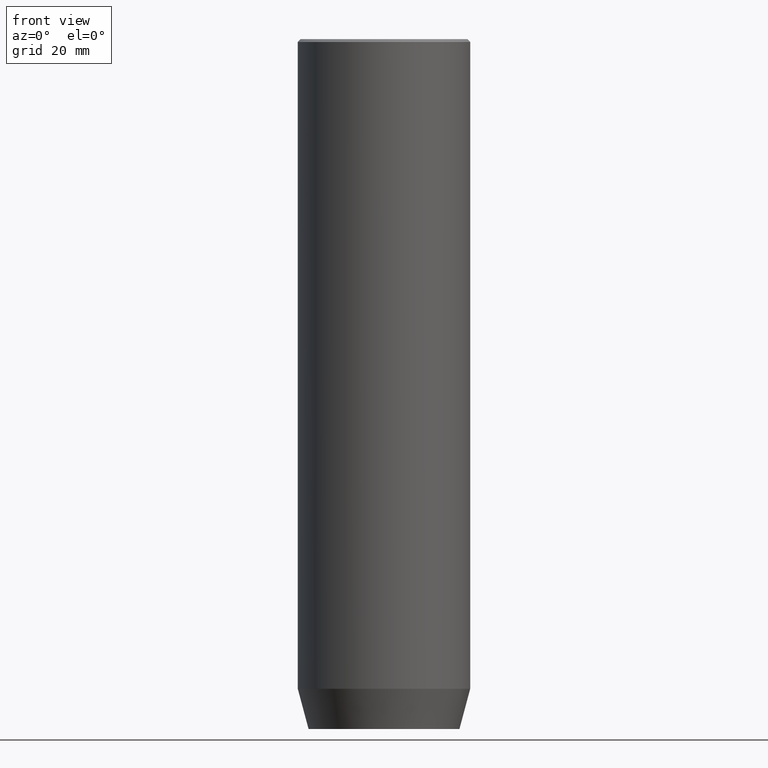
[diagram: clean part render]
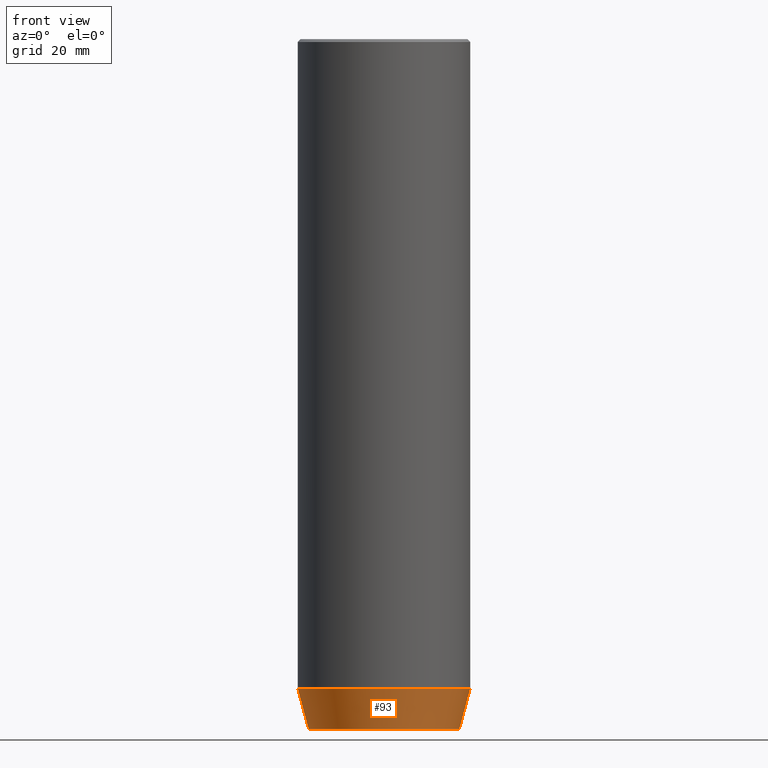
[diagram: same view with one face highlighted and labeled with its STEP entity id]
A machine part, front view. The second image highlights one B-rep face of the part: STEP entity #93.
In plain terms, the highlighted conical surface has half-angle 15 deg.
Its self-contained STEP definition (entity closure, byte-faithful):
#2 = DIRECTION ( 'NONE',  ( 1.000000000000000000, 0.000000000000000000, 0.000000000000000000 ) ) ;
#21 = CARTESIAN_POINT ( 'NONE',  ( 0.000000000000000000, 0.000000000000000000, -112.9999999999999858 ) ) ;
#24 = CIRCLE ( 'NONE', #263, 13.12435565298213369 ) ;
#34 = DIRECTION ( 'NONE',  ( 0.2588190451025213501, 0.000000000000000000, 0.9659258262890680902 ) ) ;
#39 = CARTESIAN_POINT ( 'NONE',  ( -15.00000000000000000, 1.836970198721029589E-15, -112.9999999999999858 ) ) ;
#41 = VERTEX_POINT ( 'NONE', #517 ) ;
#93 = ADVANCED_FACE ( 'NONE', ( #323 ), #488, .T. ) ;
#114 = CIRCLE ( 'NONE', #284, 15.00000000000000000 ) ;
#160 = VERTEX_POINT ( 'NONE', #39 ) ;
#169 = VECTOR ( 'NONE', #407, 1000.000000000000000 ) ;
#180 = DIRECTION ( 'NONE',  ( 1.000000000000000000, 0.000000000000000000, 0.000000000000000000 ) ) ;
#187 = LINE ( 'NONE', #430, #398 ) ;
#188 = DIRECTION ( 'NONE',  ( -0.000000000000000000, -0.000000000000000000, 1.000000000000000000 ) ) ;
#203 = LINE ( 'NONE', #459, #169 ) ;
#204 = CARTESIAN_POINT ( 'NONE',  ( 0.000000000000000000, 0.000000000000000000, -120.0000000000000000 ) ) ;
#206 = AXIS2_PLACEMENT_3D ( 'NONE', #623, #188, #180 ) ;
#262 = VERTEX_POINT ( 'NONE', #602 ) ;
#263 = AXIS2_PLACEMENT_3D ( 'NONE', #204, #349, #2 ) ;
#274 = DIRECTION ( 'NONE',  ( -0.000000000000000000, -0.000000000000000000, 1.000000000000000000 ) ) ;
#284 = AXIS2_PLACEMENT_3D ( 'NONE', #21, #274, #318 ) ;
#318 = DIRECTION ( 'NONE',  ( 1.000000000000000000, 0.000000000000000000, 0.000000000000000000 ) ) ;
#323 = FACE_OUTER_BOUND ( 'NONE', #515, .T. ) ;
#330 = CARTESIAN_POINT ( 'NONE',  ( -13.12435565298213369, 1.722120106425316888E-15, -120.0000000000000000 ) ) ;
#335 = ORIENTED_EDGE ( 'NONE', *, *, #606, .T. ) ;
#343 = EDGE_CURVE ( 'NONE', #472, #160, #203, .T. ) ;
#349 = DIRECTION ( 'NONE',  ( -0.000000000000000000, -0.000000000000000000, 1.000000000000000000 ) ) ;
#398 = VECTOR ( 'NONE', #34, 1000.000000000000000 ) ;
#407 = DIRECTION ( 'NONE',  ( -0.2588190451025213501, 3.169619151431772337E-17, 0.9659258262890680902 ) ) ;
#430 = CARTESIAN_POINT ( 'NONE',  ( 15.00000000000000000, 0.000000000000000000, -112.9999999999999858 ) ) ;
#459 = CARTESIAN_POINT ( 'NONE',  ( -15.00000000000000000, 1.836970198721029589E-15, -112.9999999999999858 ) ) ;
#472 = VERTEX_POINT ( 'NONE', #330 ) ;
#488 = CONICAL_SURFACE ( 'NONE', #206, 15.00000000000000000, 0.2617993877991500740 ) ;
#515 = EDGE_LOOP ( 'NONE', ( #621, #608, #335, #563 ) ) ;
#517 = CARTESIAN_POINT ( 'NONE',  ( 13.12435565298213369, 0.000000000000000000, -120.0000000000000000 ) ) ;
#524 = EDGE_CURVE ( 'NONE', #160, #262, #114, .T. ) ;
#563 = ORIENTED_EDGE ( 'NONE', *, *, #524, .F. ) ;
#589 = EDGE_CURVE ( 'NONE', #472, #41, #24, .T. ) ;
#602 = CARTESIAN_POINT ( 'NONE',  ( 15.00000000000000000, 0.000000000000000000, -112.9999999999999858 ) ) ;
#606 = EDGE_CURVE ( 'NONE', #41, #262, #187, .T. ) ;
#608 = ORIENTED_EDGE ( 'NONE', *, *, #589, .T. ) ;
#621 = ORIENTED_EDGE ( 'NONE', *, *, #343, .F. ) ;
#623 = CARTESIAN_POINT ( 'NONE',  ( 0.000000000000000000, 0.000000000000000000, -112.9999999999999858 ) ) ;